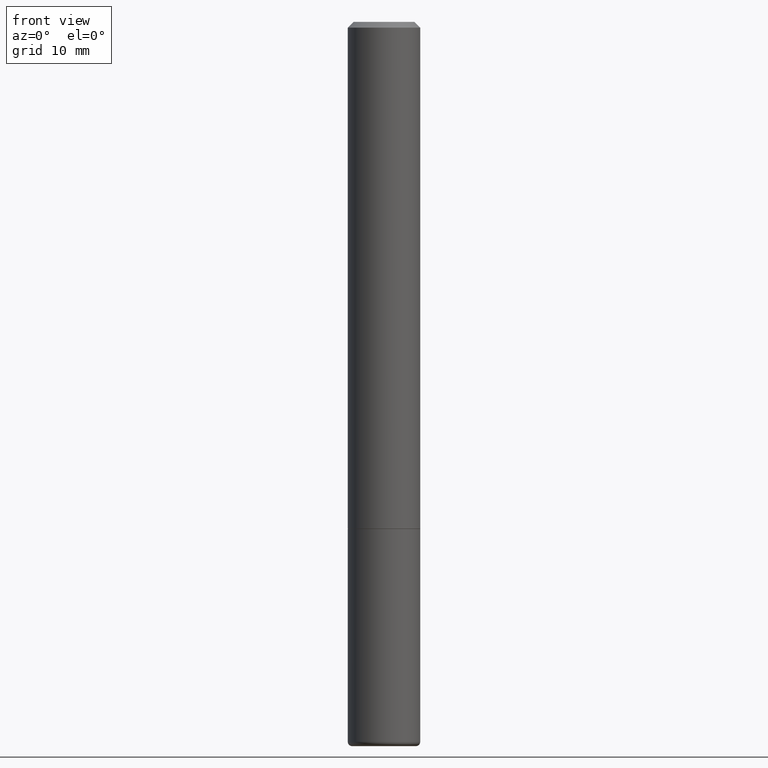
[diagram: clean part render]
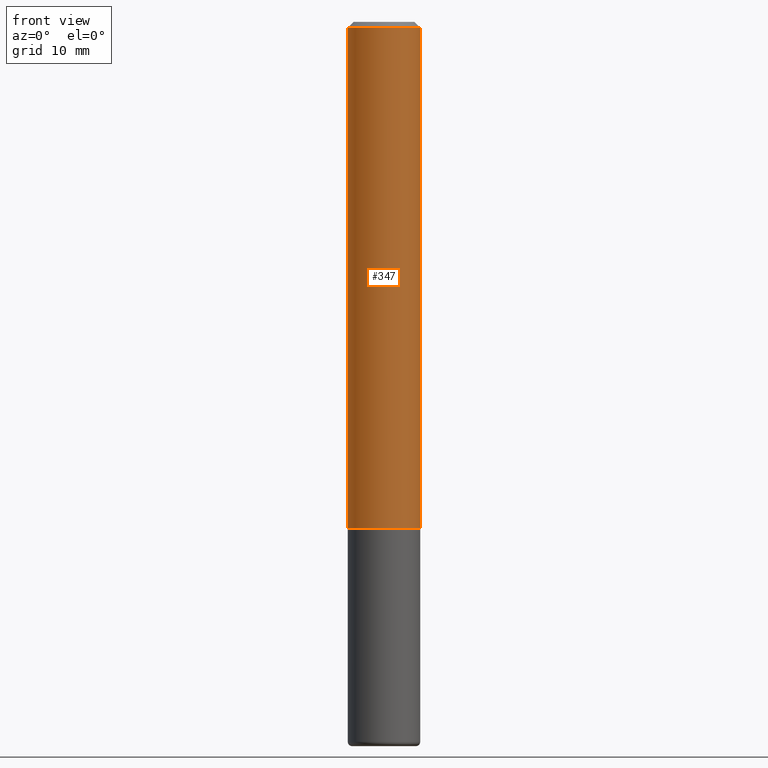
[diagram: same view with one face highlighted and labeled with its STEP entity id]
A machine part, front view. The second image highlights one B-rep face of the part: STEP entity #347.
In plain terms, the highlighted cylindrical surface (edge-blend (fillet) strip) has radius 3.175 mm, axis along (-0, 0, 1).
Its self-contained STEP definition (entity closure, byte-faithful):
#1 = CARTESIAN_POINT ( 'NONE',  ( 0.000000000000000000, 0.000000000000000000, 0.000000000000000000 ) ) ;
#41 = CARTESIAN_POINT ( 'NONE',  ( 0.1250000000000000278, -6.979471196347445792E-15, -1.749000000000000110 ) ) ;
#42 = VERTEX_POINT ( 'NONE', #270 ) ;
#68 = CARTESIAN_POINT ( 'NONE',  ( 4.890937612370296805E-31, -6.982962677686323656E-17, -0.02000000000000009409 ) ) ;
#94 = DIRECTION ( 'NONE',  ( -2.445468806185136877E-29, 3.491481338843145188E-15, 1.000000000000000000 ) ) ;
#100 = DIRECTION ( 'NONE',  ( -2.445468806185136597E-29, 3.491481338843145583E-15, 1.000000000000000000 ) ) ;
#106 = LINE ( 'NONE', #256, #196 ) ;
#112 = ORIENTED_EDGE ( 'NONE', *, *, #338, .T. ) ;
#125 = LINE ( 'NONE', #275, #265 ) ;
#138 = AXIS2_PLACEMENT_3D ( 'NONE', #68, #100, #451 ) ;
#150 = DIRECTION ( 'NONE',  ( -2.445468806185136597E-29, 3.491481338843145583E-15, 1.000000000000000000 ) ) ;
#151 = CARTESIAN_POINT ( 'NONE',  ( -0.1250000000000000278, -2.200036824506626993E-15, -1.749000000000000110 ) ) ;
#161 = EDGE_CURVE ( 'NONE', #448, #42, #125, .T. ) ;
#167 = AXIS2_PLACEMENT_3D ( 'NONE', #364, #402, #374 ) ;
#196 = VECTOR ( 'NONE', #411, 39.37007874015748143 ) ;
#204 = EDGE_CURVE ( 'NONE', #448, #341, #327, .T. ) ;
#223 = CYLINDRICAL_SURFACE ( 'NONE', #352, 0.1249999999999996253 ) ;
#245 = EDGE_CURVE ( 'NONE', #42, #375, #370, .T. ) ;
#256 = CARTESIAN_POINT ( 'NONE',  ( 0.1249999999999996253, -8.728703347107806764E-16, 6.095220969744901524E-30 ) ) ;
#261 = FACE_OUTER_BOUND ( 'NONE', #296, .T. ) ;
#265 = VECTOR ( 'NONE', #94, 39.37007874015748143 ) ;
#270 = CARTESIAN_POINT ( 'NONE',  ( -0.1249999999999992090, 8.030407079339147158E-16, -0.02000000000000009409 ) ) ;
#275 = CARTESIAN_POINT ( 'NONE',  ( -0.1249999999999996253, 8.881784197001225699E-16, -6.148668862818613310E-30 ) ) ;
#296 = EDGE_LOOP ( 'NONE', ( #389, #479, #112, #298 ) ) ;
#298 = ORIENTED_EDGE ( 'NONE', *, *, #245, .F. ) ;
#327 = CIRCLE ( 'NONE', #167, 0.1250000000000000278 ) ;
#338 = EDGE_CURVE ( 'NONE', #341, #375, #106, .T. ) ;
#341 = VERTEX_POINT ( 'NONE', #41 ) ;
#347 = ADVANCED_FACE ( 'NONE', ( #261 ), #223, .T. ) ;
#352 = AXIS2_PLACEMENT_3D ( 'NONE', #1, #150, #381 ) ;
#364 = CARTESIAN_POINT ( 'NONE',  ( 4.277124942017804562E-29, -6.106600861636661664E-15, -1.749000000000000110 ) ) ;
#370 = CIRCLE ( 'NONE', #138, 0.1249999999999992090 ) ;
#374 = DIRECTION ( 'NONE',  ( 1.000000000000000000, -6.982962677686269077E-15, 0.000000000000000000 ) ) ;
#375 = VERTEX_POINT ( 'NONE', #455 ) ;
#381 = DIRECTION ( 'NONE',  ( 1.000000000000000000, -6.982962677686266711E-15, 4.876176775795935793E-29 ) ) ;
#389 = ORIENTED_EDGE ( 'NONE', *, *, #161, .F. ) ;
#402 = DIRECTION ( 'NONE',  ( -2.445468806185136597E-29, 3.491481338843145583E-15, 1.000000000000000000 ) ) ;
#411 = DIRECTION ( 'NONE',  ( -2.445468806185136877E-29, 3.491481338843145188E-15, 1.000000000000000000 ) ) ;
#448 = VERTEX_POINT ( 'NONE', #151 ) ;
#451 = DIRECTION ( 'NONE',  ( 1.000000000000000000, -6.982962677686267499E-15, 0.000000000000000000 ) ) ;
#455 = CARTESIAN_POINT ( 'NONE',  ( 0.1249999999999992090, -9.273918764982992215E-16, -0.02000000000000009409 ) ) ;
#479 = ORIENTED_EDGE ( 'NONE', *, *, #204, .T. ) ;